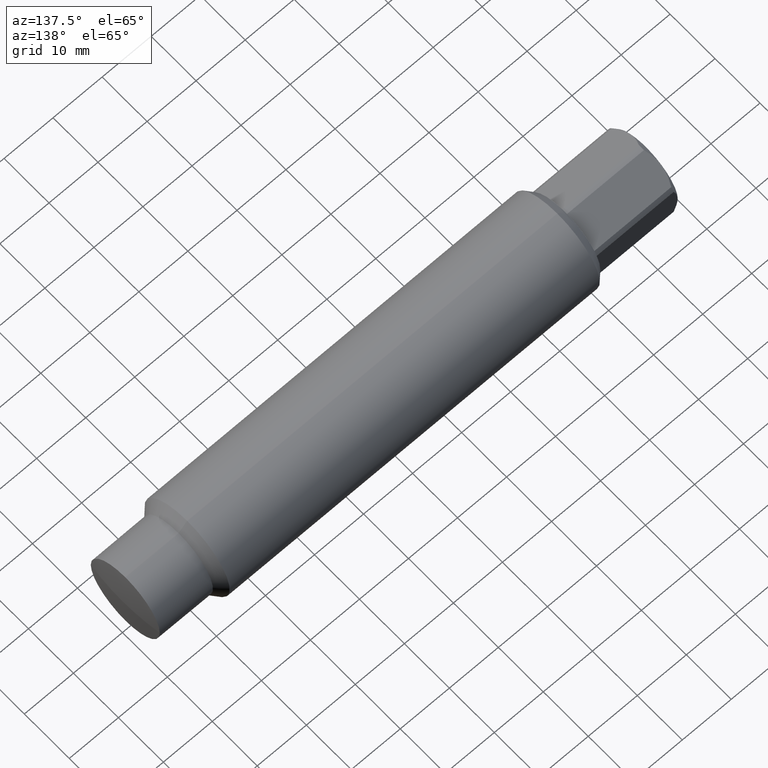
[diagram: clean part render]
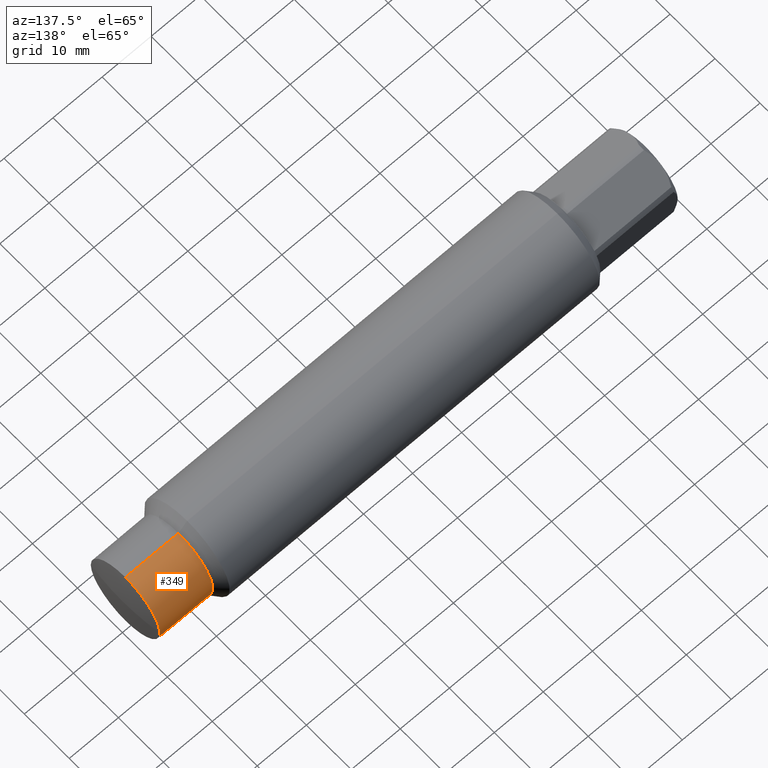
[diagram: same view with one face highlighted and labeled with its STEP entity id]
A machine part, auxiliary view. The second image highlights one B-rep face of the part: STEP entity #349.
In plain terms, the highlighted cylindrical surface (partial cylindrical patch) has radius 7.6835 mm, axis along (-1, -0, -0).
Its self-contained STEP definition (entity closure, byte-faithful):
#31 = ORIENTED_EDGE ( 'NONE', *, *, #1133, .T. ) ;
#68 = CYLINDRICAL_SURFACE ( 'NONE', #119, 0.3024999999999999400 ) ;
#113 = CARTESIAN_POINT ( 'NONE',  ( -0.02300891504286236400, 0.0000000000000000000, 0.3024999999999999900 ) ) ;
#119 = AXIS2_PLACEMENT_3D ( 'NONE', #416, #614, #1109 ) ;
#126 = DIRECTION ( 'NONE',  ( -1.000000000000000000, -0.0000000000000000000, -0.0000000000000000000 ) ) ;
#130 = VERTEX_POINT ( 'NONE', #674 ) ;
#157 = CARTESIAN_POINT ( 'NONE',  ( -0.02300891504286238200, 0.3024999999999999400, 0.0000000000000000000 ) ) ;
#217 = CARTESIAN_POINT ( 'NONE',  ( -0.4499999999999999600, 0.0000000000000000000, 0.0000000000000000000 ) ) ;
#263 = DIRECTION ( 'NONE',  ( -1.000000000000000000, -0.0000000000000000000, -0.0000000000000000000 ) ) ;
#299 = ORIENTED_EDGE ( 'NONE', *, *, #1143, .F. ) ;
#321 = DIRECTION ( 'NONE',  ( 0.0000000000000000000, 0.0000000000000000000, 1.000000000000000000 ) ) ;
#339 = FACE_OUTER_BOUND ( 'NONE', #364, .T. ) ;
#349 = ADVANCED_FACE ( 'NONE', ( #339 ), #68, .T. ) ;
#364 = EDGE_LOOP ( 'NONE', ( #31, #1229, #489, #299, #605 ) ) ;
#370 = VECTOR ( 'NONE', #753, 39.37007874015748100 ) ;
#392 = VERTEX_POINT ( 'NONE', #950 ) ;
#411 = DIRECTION ( 'NONE',  ( -1.000000000000000000, -0.0000000000000000000, -0.0000000000000000000 ) ) ;
#416 = CARTESIAN_POINT ( 'NONE',  ( 0.0000000000000000000, 0.0000000000000000000, 0.0000000000000000000 ) ) ;
#421 = AXIS2_PLACEMENT_3D ( 'NONE', #694, #126, #800 ) ;
#457 = CARTESIAN_POINT ( 'NONE',  ( 0.0000000000000000000, 0.0000000000000000000, 0.3024999999999999400 ) ) ;
#489 = ORIENTED_EDGE ( 'NONE', *, *, #758, .F. ) ;
#503 = AXIS2_PLACEMENT_3D ( 'NONE', #217, #901, #321 ) ;
#605 = ORIENTED_EDGE ( 'NONE', *, *, #629, .T. ) ;
#614 = DIRECTION ( 'NONE',  ( -1.000000000000000000, -0.0000000000000000000, -0.0000000000000000000 ) ) ;
#629 = EDGE_CURVE ( 'NONE', #732, #687, #756, .T. ) ;
#635 = CARTESIAN_POINT ( 'NONE',  ( -0.4499999999999999600, 0.0000000000000000000, 0.3024999999999999400 ) ) ;
#658 = CIRCLE ( 'NONE', #836, 0.3024999999999999900 ) ;
#674 = CARTESIAN_POINT ( 'NONE',  ( -0.02300891504286236400, 3.704556567420743900E-017, -0.3024999999999999900 ) ) ;
#675 = VERTEX_POINT ( 'NONE', #635 ) ;
#687 = VERTEX_POINT ( 'NONE', #157 ) ;
#694 = CARTESIAN_POINT ( 'NONE',  ( -0.02300891504286236400, 0.0000000000000000000, 0.0000000000000000000 ) ) ;
#732 = VERTEX_POINT ( 'NONE', #113 ) ;
#746 = CIRCLE ( 'NONE', #503, 0.3024999999999999400 ) ;
#753 = DIRECTION ( 'NONE',  ( -1.000000000000000000, -0.0000000000000000000, -0.0000000000000000000 ) ) ;
#756 = CIRCLE ( 'NONE', #421, 0.3024999999999999900 ) ;
#758 = EDGE_CURVE ( 'NONE', #675, #392, #746, .T. ) ;
#800 = DIRECTION ( 'NONE',  ( 0.0000000000000000000, 0.0000000000000000000, 1.000000000000000000 ) ) ;
#823 = EDGE_CURVE ( 'NONE', #130, #392, #1213, .T. ) ;
#836 = AXIS2_PLACEMENT_3D ( 'NONE', #850, #263, #943 ) ;
#850 = CARTESIAN_POINT ( 'NONE',  ( -0.02300891504286236400, 0.0000000000000000000, 0.0000000000000000000 ) ) ;
#901 = DIRECTION ( 'NONE',  ( -1.000000000000000000, -0.0000000000000000000, -0.0000000000000000000 ) ) ;
#917 = VECTOR ( 'NONE', #411, 39.37007874015748100 ) ;
#943 = DIRECTION ( 'NONE',  ( 0.0000000000000000000, 0.0000000000000000000, 1.000000000000000000 ) ) ;
#950 = CARTESIAN_POINT ( 'NONE',  ( -0.4499999999999999600, 3.704556567420742600E-017, -0.3024999999999999400 ) ) ;
#1107 = CARTESIAN_POINT ( 'NONE',  ( 0.0000000000000000000, 3.704556567420742600E-017, -0.3024999999999999400 ) ) ;
#1109 = DIRECTION ( 'NONE',  ( 0.0000000000000000000, 0.0000000000000000000, 1.000000000000000000 ) ) ;
#1133 = EDGE_CURVE ( 'NONE', #687, #130, #658, .T. ) ;
#1143 = EDGE_CURVE ( 'NONE', #732, #675, #1154, .T. ) ;
#1154 = LINE ( 'NONE', #457, #370 ) ;
#1213 = LINE ( 'NONE', #1107, #917 ) ;
#1229 = ORIENTED_EDGE ( 'NONE', *, *, #823, .T. ) ;